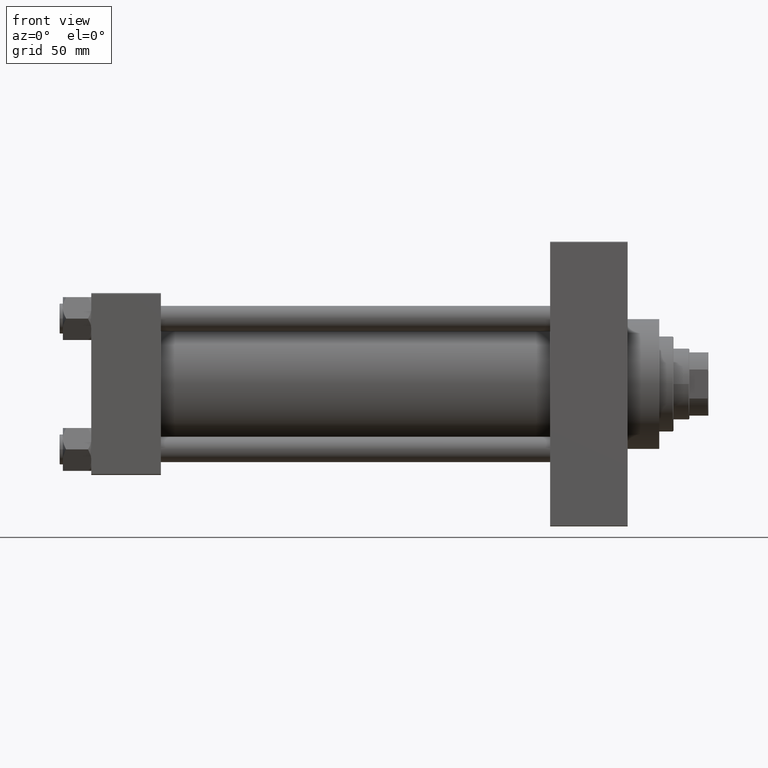
[diagram: clean part render]
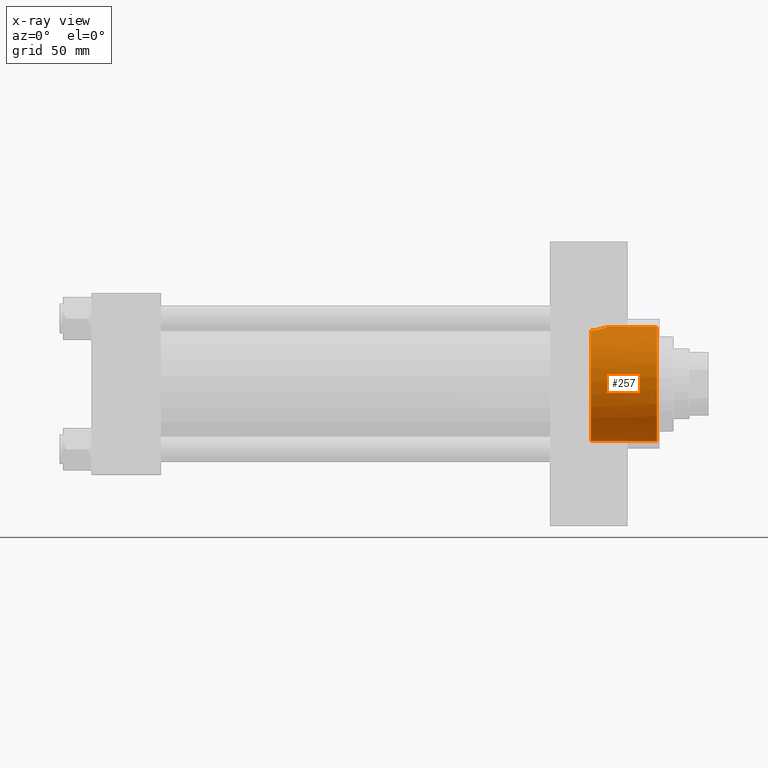
[diagram: x-ray — body ghosted, one internal face saturated and labeled with its STEP entity id]
A machine part, front view, then the same camera in x-ray: the body is ghosted and one INTERNAL B-rep face — a face not visible from any outside direction — is saturated and labeled: STEP entity #257.
In plain terms, the highlighted cylindrical surface (partial cylindrical patch) has radius 36 mm, axis along (1, 0, 0).
Its self-contained STEP definition (entity closure, byte-faithful):
#231 = CARTESIAN_POINT ( 'NONE',  ( 321.1396695021037999, -10.42376285600498420, 34.45866136291865445 ) ) ;
#257 = ADVANCED_FACE ( 'NONE', ( #2364 ), #46187, .F. ) ;
#947 = CARTESIAN_POINT ( 'NONE',  ( 324.8836492013383577, -5.839896060611117434, 35.52932100949514194 ) ) ;
#1096 = CARTESIAN_POINT ( 'NONE',  ( 315.7399999999999523, 0.000000000000000000, -36.00000000000000000 ) ) ;
#1533 = DIRECTION ( 'NONE',  ( 1.000000000000000000, 0.000000000000000000, 0.000000000000000000 ) ) ;
#1572 = CARTESIAN_POINT ( 'NONE',  ( 326.2200000000000273, 4.408731805096607676E-15, 36.00000000000000000 ) ) ;
#1826 = CIRCLE ( 'NONE', #38951, 36.00000000000000000 ) ;
#2139 = CARTESIAN_POINT ( 'NONE',  ( 318.6039743856109681, -11.99680468088062391, 33.94354112271069823 ) ) ;
#2364 = FACE_OUTER_BOUND ( 'NONE', #25856, .T. ) ;
#2992 = VERTEX_POINT ( 'NONE', #16302 ) ;
#3502 = DIRECTION ( 'NONE',  ( 0.000000000000000000, 0.000000000000000000, -1.000000000000000000 ) ) ;
#4351 = CARTESIAN_POINT ( 'NONE',  ( 323.4891427515921123, -8.055144359843694701, 35.08850325643998502 ) ) ;
#5543 = CARTESIAN_POINT ( 'NONE',  ( 317.5622627804116860, -12.41346128962092799, 33.79242230791057722 ) ) ;
#6312 = CARTESIAN_POINT ( 'NONE',  ( 315.7399999999999523, -12.93293470176046611, 33.59671412504502541 ) ) ;
#6416 = DIRECTION ( 'NONE',  ( 1.000000000000000000, 0.000000000000000000, 0.000000000000000000 ) ) ;
#6953 = ORIENTED_EDGE ( 'NONE', *, *, #20588, .F. ) ;
#7279 = VERTEX_POINT ( 'NONE', #1096 ) ;
#8234 = CARTESIAN_POINT ( 'NONE',  ( 322.2683236211793769, -9.456123306897660896, 34.73961675537525906 ) ) ;
#9887 = DIRECTION ( 'NONE',  ( 1.000000000000000000, -0.000000000000000000, -0.000000000000000000 ) ) ;
#11863 = CARTESIAN_POINT ( 'NONE',  ( 325.6891278366015854, -3.727918262643103553, 35.80834393886973999 ) ) ;
#15013 = CARTESIAN_POINT ( 'NONE',  ( 320.2234778375479891, -11.07831175427974379, 34.25365854375354502 ) ) ;
#16302 = CARTESIAN_POINT ( 'NONE',  ( 357.5000000000000568, 0.000000000000000000, -36.00000000000000000 ) ) ;
#17150 = CARTESIAN_POINT ( 'NONE',  ( 315.7399999999999523, 0.000000000000000000, 0.000000000000000000 ) ) ;
#17906 = DIRECTION ( 'NONE',  ( 1.000000000000000000, -0.000000000000000000, -0.000000000000000000 ) ) ;
#18651 = CARTESIAN_POINT ( 'NONE',  ( 325.5762609626179369, -4.092528755394252649, 35.76841822259746095 ) ) ;
#18887 = CARTESIAN_POINT ( 'NONE',  ( 326.2200000000000841, -0.7632647160769687744, 36.00000000000000711 ) ) ;
#20091 = CARTESIAN_POINT ( 'NONE',  ( 316.4827252521803871, -12.75862568112613182, 33.66350131574143489 ) ) ;
#20588 = EDGE_CURVE ( 'NONE', #27737, #7279, #45623, .T. ) ;
#21543 = LINE ( 'NONE', #36532, #23179 ) ;
#22288 = CARTESIAN_POINT ( 'NONE',  ( 321.4301524439941886, -10.19013505585469481, 34.52862519156881405 ) ) ;
#22522 = CARTESIAN_POINT ( 'NONE',  ( 319.2689392453522146, -11.66300537238691959, 34.06086853725206254 ) ) ;
#22758 = CARTESIAN_POINT ( 'NONE',  ( 326.1544019816762443, -1.515576091947747006, 35.97576316411753794 ) ) ;
#23139 = EDGE_CURVE ( 'NONE', #7279, #2992, #21543, .T. ) ;
#23179 = VECTOR ( 'NONE', #17906, 1000.000000000000000 ) ;
#23499 = AXIS2_PLACEMENT_3D ( 'NONE', #17150, #9887, #31905 ) ;
#25104 = ORIENTED_EDGE ( 'NONE', *, *, #28335, .T. ) ;
#25856 = EDGE_LOOP ( 'NONE', ( #39159, #25104, #42936, #37828, #6953 ) ) ;
#25910 = CARTESIAN_POINT ( 'NONE',  ( 324.3340033522583212, -6.815280192024301797, 35.35054759480853903 ) ) ;
#26624 = CARTESIAN_POINT ( 'NONE',  ( 324.1369082302658171, -7.132913908064977271, 35.28770313236167766 ) ) ;
#27574 = CARTESIAN_POINT ( 'NONE',  ( 316.1130436000880763, -12.85390086390295394, 33.62713791769440519 ) ) ;
#27737 = VERTEX_POINT ( 'NONE', #6312 ) ;
#27876 = EDGE_CURVE ( 'NONE', #45002, #27737, #29063, .T. ) ;
#27902 = VERTEX_POINT ( 'NONE', #45724 ) ;
#28335 = EDGE_CURVE ( 'NONE', #45002, #27902, #47815, .T. ) ;
#29063 = B_SPLINE_CURVE_WITH_KNOTS ( 'NONE', 3,
 ( #37514, #18887, #22758, #45491, #30022, #11863, #18651, #30259, #947, #25910, #26624, #40676, #4351, #41389, #8234, #22288, #231, #40916, #15013, #22522, #2139, #5543, #38708, #20091, #27574, #42104 ),
 .UNSPECIFIED., .F., .F.,
 ( 4, 2, 2, 2, 2, 2, 2, 2, 2, 2, 2, 2, 4 ),
 ( 0.01810032772820881902, 0.02036086973656278665, 0.02149114074073975311, 0.02262141174491672305, 0.02488195375327065945, 0.02601222475744759122, 0.02714249576162451952, 0.02940303776997837959, 0.03053330877415530789, 0.03166357977833223619, 0.03392412178668623851, 0.03505439279086331600, 0.03618466379504039349 ),
 .UNSPECIFIED. ) ;
#30022 = CARTESIAN_POINT ( 'NONE',  ( 325.8814408249625103, -2.996635129533370634, 35.87694312671833785 ) ) ;
#30259 = CARTESIAN_POINT ( 'NONE',  ( 325.1948937127548334, -5.159834589306234065, 35.63551938799944452 ) ) ;
#30383 = DIRECTION ( 'NONE',  ( 1.000000000000000000, -0.000000000000000000, -0.000000000000000000 ) ) ;
#31073 = CARTESIAN_POINT ( 'NONE',  ( 357.5000000000000568, 0.000000000000000000, 0.000000000000000000 ) ) ;
#31532 = EDGE_CURVE ( 'NONE', #27902, #2992, #1826, .T. ) ;
#31905 = DIRECTION ( 'NONE',  ( 0.000000000000000000, 0.000000000000000000, -1.000000000000000000 ) ) ;
#34470 = DIRECTION ( 'NONE',  ( 0.000000000000000000, 0.000000000000000000, -1.000000000000000000 ) ) ;
#36532 = CARTESIAN_POINT ( 'NONE',  ( 315.7399999999999523, 0.000000000000000000, -36.00000000000000000 ) ) ;
#36665 = CARTESIAN_POINT ( 'NONE',  ( 315.7399999999999523, 0.000000000000000000, 0.000000000000000000 ) ) ;
#37514 = CARTESIAN_POINT ( 'NONE',  ( 326.2200000000000273, 4.408731805096607676E-15, 36.00000000000000000 ) ) ;
#37828 = ORIENTED_EDGE ( 'NONE', *, *, #23139, .F. ) ;
#38708 = CARTESIAN_POINT ( 'NONE',  ( 317.2076088460675578, -12.53825874082047065, 33.74619856893893655 ) ) ;
#38951 = AXIS2_PLACEMENT_3D ( 'NONE', #31073, #1533, #34470 ) ;
#39159 = ORIENTED_EDGE ( 'NONE', *, *, #27876, .F. ) ;
#39442 = AXIS2_PLACEMENT_3D ( 'NONE', #36665, #6416, #3502 ) ;
#40676 = CARTESIAN_POINT ( 'NONE',  ( 323.7144084780974822, -7.753104972441691167, 35.15664683191294415 ) ) ;
#40916 = CARTESIAN_POINT ( 'NONE',  ( 320.5356348427427520, -10.86845247487192267, 34.32099817610178860 ) ) ;
#41278 = CARTESIAN_POINT ( 'NONE',  ( 315.7399999999999523, 4.408728476930470856E-15, 36.00000000000000000 ) ) ;
#41389 = CARTESIAN_POINT ( 'NONE',  ( 322.7829955645536870, -8.922873027715082728, 34.88174282732673959 ) ) ;
#42104 = CARTESIAN_POINT ( 'NONE',  ( 315.7399999999999523, -12.93293470176046611, 33.59671412504502541 ) ) ;
#42936 = ORIENTED_EDGE ( 'NONE', *, *, #31532, .T. ) ;
#45002 = VERTEX_POINT ( 'NONE', #1572 ) ;
#45491 = CARTESIAN_POINT ( 'NONE',  ( 325.9615557504131402, -2.628343228240516360, 35.90584824798535379 ) ) ;
#45623 = CIRCLE ( 'NONE', #39442, 36.00000000000000000 ) ;
#45724 = CARTESIAN_POINT ( 'NONE',  ( 357.5000000000000568, 4.408728476930470856E-15, 36.00000000000000000 ) ) ;
#46187 = CYLINDRICAL_SURFACE ( 'NONE', #23499, 36.00000000000000000 ) ;
#46530 = VECTOR ( 'NONE', #30383, 1000.000000000000000 ) ;
#47815 = LINE ( 'NONE', #41278, #46530 ) ;